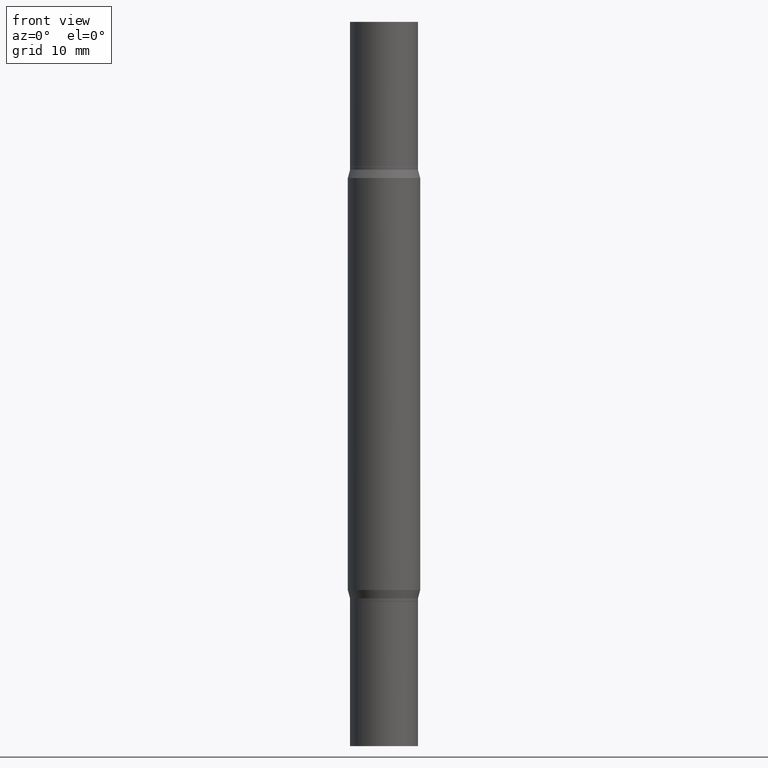
[diagram: clean part render]
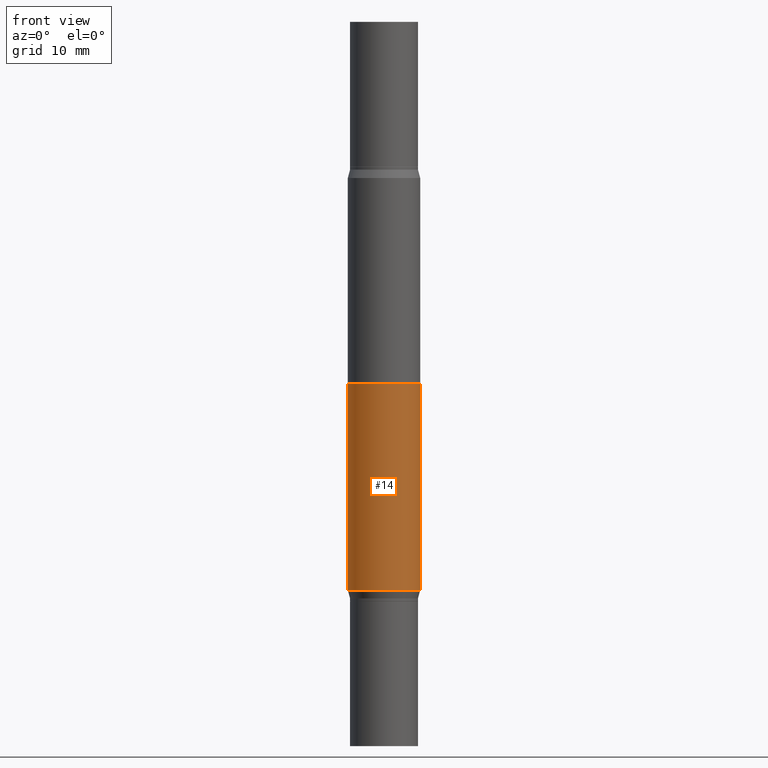
[diagram: same view with one face highlighted and labeled with its STEP entity id]
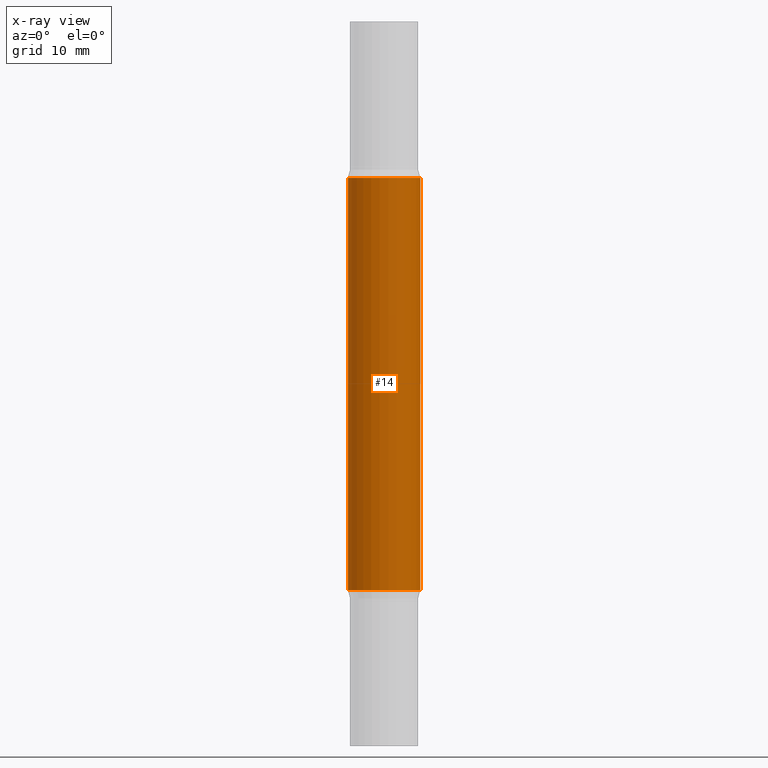
[diagram: x-ray of the same camera — body ghosted, the highlighted face saturated]
A machine part, front view. The second image highlights one B-rep face of the part: STEP entity #14.
The next image is the same camera in x-ray: the body ghosted, the highlighted face saturated — about 0% of this face is hidden behind the body in this view.
In plain terms, the highlighted cylindrical surface (edge-blend (fillet) strip) has radius 3.175 mm, axis along (-0, -0, -1).
Its self-contained STEP definition (entity closure, byte-faithful):
#14 = ADVANCED_FACE ( 'NONE', ( #380 ), #825, .T. ) ;
#42 = EDGE_CURVE ( 'NONE', #84, #687, #383, .T. ) ;
#61 = CARTESIAN_POINT ( 'NONE',  ( 4.795295336410958635E-29, -1.882062336673981410E-15, -0.5391099962990381078 ) ) ;
#76 = DIRECTION ( 'NONE',  ( 1.000000000000000000, -6.982962677686266711E-15, 0.000000000000000000 ) ) ;
#84 = VERTEX_POINT ( 'NONE', #506 ) ;
#114 = DIRECTION ( 'NONE',  ( -2.445468806185136877E-29, -3.491805094961123683E-15, -1.000000000000000000 ) ) ;
#123 = AXIS2_PLACEMENT_3D ( 'NONE', #61, #284, #76 ) ;
#140 = VERTEX_POINT ( 'NONE', #768 ) ;
#156 = ORIENTED_EDGE ( 'NONE', *, *, #42, .F. ) ;
#227 = CIRCLE ( 'NONE', #724, 0.1250000000000000000 ) ;
#284 = DIRECTION ( 'NONE',  ( 2.445468806185136597E-29, 3.491805094961124077E-15, 1.000000000000000000 ) ) ;
#293 = LINE ( 'NONE', #796, #946 ) ;
#328 = CARTESIAN_POINT ( 'NONE',  ( 4.795295336410958635E-29, -6.846410855445973637E-15, -1.960890003700961337 ) ) ;
#334 = EDGE_CURVE ( 'NONE', #762, #140, #227, .T. ) ;
#376 = DIRECTION ( 'NONE',  ( 1.000000000000000000, -6.982962677686262766E-15, 0.000000000000000000 ) ) ;
#380 = FACE_OUTER_BOUND ( 'NONE', #910, .T. ) ;
#383 = CIRCLE ( 'NONE', #123, 0.1250000000000000000 ) ;
#408 = DIRECTION ( 'NONE',  ( 1.000000000000000000, -6.982962677686270655E-15, 0.000000000000000000 ) ) ;
#483 = ORIENTED_EDGE ( 'NONE', *, *, #887, .T. ) ;
#506 = CARTESIAN_POINT ( 'NONE',  ( -0.1250000000000000000, -1.024500086952540162E-15, -0.5391099962990381078 ) ) ;
#509 = LINE ( 'NONE', #655, #790 ) ;
#510 = DIRECTION ( 'NONE',  ( -2.445468806185136597E-29, -3.491805094961124077E-15, -1.000000000000000000 ) ) ;
#524 = EDGE_CURVE ( 'NONE', #687, #140, #509, .T. ) ;
#597 = ORIENTED_EDGE ( 'NONE', *, *, #334, .T. ) ;
#621 = CARTESIAN_POINT ( 'NONE',  ( 0.1250000000000000000, -2.754932671384765144E-15, -0.5391099962990381078 ) ) ;
#628 = DIRECTION ( 'NONE',  ( -2.445468806185136597E-29, 3.491481338843145583E-15, 1.000000000000000000 ) ) ;
#655 = CARTESIAN_POINT ( 'NONE',  ( 0.1250000000000000000, -9.601978376966118441E-15, -2.499999999999999556 ) ) ;
#687 = VERTEX_POINT ( 'NONE', #621 ) ;
#689 = AXIS2_PLACEMENT_3D ( 'NONE', #975, #510, #376 ) ;
#718 = CARTESIAN_POINT ( 'NONE',  ( -0.1250000000000000000, -3.506789423832489448E-15, -1.960890003700961337 ) ) ;
#724 = AXIS2_PLACEMENT_3D ( 'NONE', #328, #628, #408 ) ;
#762 = VERTEX_POINT ( 'NONE', #718 ) ;
#768 = CARTESIAN_POINT ( 'NONE',  ( 0.1250000000000000000, -7.719281190156756975E-15, -1.960890003700961337 ) ) ;
#790 = VECTOR ( 'NONE', #878, 39.37007874015748143 ) ;
#793 = ORIENTED_EDGE ( 'NONE', *, *, #524, .F. ) ;
#796 = CARTESIAN_POINT ( 'NONE',  ( -0.1250000000000000000, -7.871545792533893657E-15, -2.499999999999999556 ) ) ;
#825 = CYLINDRICAL_SURFACE ( 'NONE', #689, 0.1250000000000000000 ) ;
#878 = DIRECTION ( 'NONE',  ( -2.445468806185136877E-29, -3.491805094961123683E-15, -1.000000000000000000 ) ) ;
#887 = EDGE_CURVE ( 'NONE', #84, #762, #293, .T. ) ;
#910 = EDGE_LOOP ( 'NONE', ( #156, #483, #597, #793 ) ) ;
#946 = VECTOR ( 'NONE', #114, 39.37007874015748143 ) ;
#975 = CARTESIAN_POINT ( 'NONE',  ( 0.000000000000000000, -8.729108042255335103E-15, -2.499999999999999556 ) ) ;